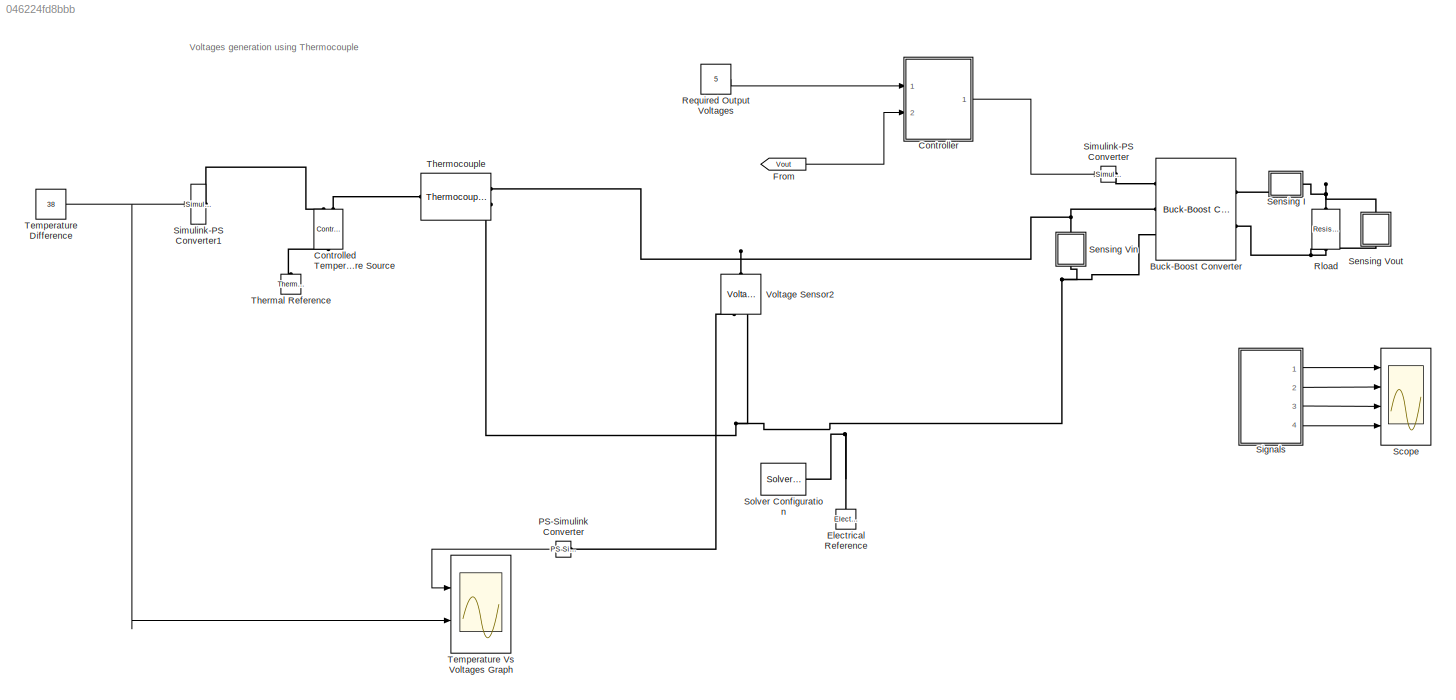
MODEL slx_046224fd8bbb
KIND model
CONFIG AbsTol = auto
CONFIG EnableMultiTasking = on
CONFIG FixedStep = Ts
CONFIG MaxStep = 1e-4
CONFIG MinStep = auto
CONFIG PreLoadFcn = ee_inverting_buck_boost_converter_control_data;
CONFIG RelTol = 1e-3
CONFIG SampleTimeConstraint = Unconstrained
CONFIG Solver = ode23t
CONFIG SolverName = ode23t
CONFIG StartTime = 0.0
CONFIG StopFcn = ee_addSimlogTimeStamp(bdroot)
CONFIG StopTime = 0.5
BLOCK [Reference] Buck-Boost Converter  REF=ee_lib/Semiconductors &
Converters/Converters/Buck-Boost Converter
  Ports = [0, 0, 0, 0, 0, 3, 2]
  SourceBlock = ee_lib/Semiconductors &\nConverters/Converters/Buck-Boost Converter
  SourceProductBaseCode = PS
  SourceProductName = Simscape Electrical
  SourceType = Buck-Boost Converter
BLOCK [Reference] Controlled Temperature Source  REF=fl_lib/Thermal/Thermal Sources/Controlled
Temperature Source
  Ports = [0, 0, 0, 0, 0, 1, 2]
  SourceBlock = fl_lib/Thermal/Thermal Sources/Controlled\nTemperature Source
  SourceProductBaseCode = SS
  SourceProductName = Simscape
  SourceType = Controlled\nTemperature Source
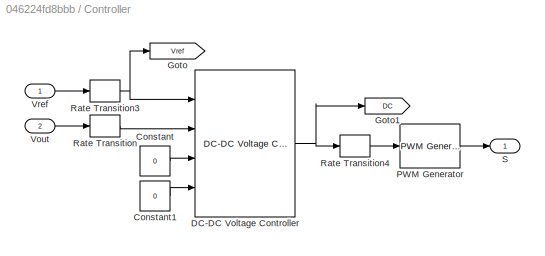
BLOCK [SubSystem] Controller
  Ports = [2, 1]
  RequestExecContextInheritance = off
BLOCK [Constant] Controller/Constant
  Value = 0
BLOCK [Constant] Controller/Constant1
  Value = 0
BLOCK [Reference] Controller/DC-DC Voltage Controller  REF=eeDcDcVoltageController/DC-DC Voltage Controller
  Ports = [4, 1]
  SourceBlock = eeDcDcVoltageController/DC-DC Voltage Controller
  SourceProductBaseCode = PS
  SourceProductName = Simscape Electrical
  SourceType = DC-DC Voltage Controller
BLOCK [Goto] Controller/Goto
  GotoTag = Vref
  TagVisibility = global
BLOCK [Goto] Controller/Goto1
  GotoTag = DC
  TagVisibility = global
BLOCK [Reference] Controller/PWM Generator  REF=eePwmGenerator/PWM Generator
  Ports = [1, 1]
  SourceBlock = eePwmGenerator/PWM Generator
  SourceProductBaseCode = PS
  SourceProductName = Simscape Electrical
  SourceType = PWM Generator
BLOCK [RateTransition] Controller/Rate Transition
  OutPortSampleTime = Tsc
BLOCK [RateTransition] Controller/Rate Transition3
  OutPortSampleTime = Tsc
BLOCK [RateTransition] Controller/Rate Transition4
  OutPortSampleTime = Ts
BLOCK [Outport] Controller/S
  IconDisplay = Port number
BLOCK [Inport] Controller/Vout
  IconDisplay = Port number
  Port = 2
BLOCK [Inport] Controller/Vref
  IconDisplay = Port number
BLOCK [Reference] Electrical Reference  REF=fl_lib/Electrical/Electrical Elements/Electrical Reference
  Ports = [0, 0, 0, 0, 0, 1]
  SourceBlock = fl_lib/Electrical/Electrical Elements/Electrical Reference
  SourceProductBaseCode = SS
  SourceProductName = Simscape
  SourceType = Electrical Reference
BLOCK [From] From
  GotoTag = Vout
  TagVisibility = global
BLOCK [Reference] PS-Simulink Converter  REF=nesl_utility/PS-Simulink
Converter
  Ports = [0, 1, 0, 0, 0, 1]
  SourceBlock = nesl_utility/PS-Simulink\nConverter
  SourceProductBaseCode = SS
  SourceProductName = Simscape
  SourceType = PS-Simulink\nConverter
BLOCK [Constant] Required Output Voltages
  Value = 5
BLOCK [Reference] Rload  REF=fl_lib/Electrical/Electrical Elements/Resistor
  Ports = [0, 0, 0, 0, 0, 1, 1]
  SourceBlock = fl_lib/Electrical/Electrical Elements/Resistor
  SourceProductBaseCode = SS
  SourceProductName = Simscape
  SourceType = Resistor
BLOCK [Scope] Scope
  Floating = off
  NumInputPorts = 4
  Ports = [4]
  ScopeSpecificationString = Simulink.scopes.TimeScopeBlockCfg('CurrentConfiguration', extmgr.ConfigurationSet(extmgr.Configuration('Core','General UI',true,'FigureColor',[1 1 1]),extmgr.Configuration('Core','Source UI',true),extmgr.Configuration('Sources','WiredSimulink',true),extmgr.Configuration('Visuals','Time Domain',true,'SerializedDisplays',{struct('MinYLimReal','-0.62615','MaxYLimReal','5.63535','YLabelReal','Voltage ...<+4261ch>
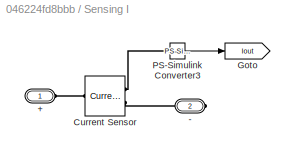
BLOCK [SubSystem] Sensing I
  Ports = [0, 0, 0, 0, 0, 1, 1]
  RequestExecContextInheritance = off
BLOCK [PMIOPort] Sensing I/+
  Side = Left
BLOCK [PMIOPort] Sensing I/-
  Port = 2
  Side = Right
BLOCK [Reference] Sensing I/Current Sensor  REF=fl_lib/Electrical/Electrical Sensors/Current Sensor
  Ports = [0, 0, 0, 0, 0, 1, 2]
  SourceBlock = fl_lib/Electrical/Electrical Sensors/Current Sensor
  SourceProductBaseCode = SS
  SourceProductName = Simscape
  SourceType = Current Sensor
BLOCK [Goto] Sensing I/Goto
  GotoTag = Iout
  TagVisibility = global
BLOCK [Reference] Sensing I/PS-Simulink Converter3  REF=nesl_utility/PS-Simulink
Converter
  Ports = [0, 1, 0, 0, 0, 1]
  SourceBlock = nesl_utility/PS-Simulink\nConverter
  SourceProductBaseCode = SS
  SourceProductName = Simscape
  SourceType = PS-Simulink\nConverter
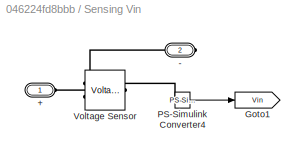
BLOCK [SubSystem] Sensing Vin
  Ports = [0, 0, 0, 0, 0, 1, 1]
  RequestExecContextInheritance = off
BLOCK [PMIOPort] Sensing Vin/+
  Side = Left
BLOCK [PMIOPort] Sensing Vin/-
  Port = 2
  Side = Right
BLOCK [Goto] Sensing Vin/Goto1
  GotoTag = Vin
  TagVisibility = global
BLOCK [Reference] Sensing Vin/PS-Simulink Converter4  REF=nesl_utility/PS-Simulink
Converter
  Ports = [0, 1, 0, 0, 0, 1]
  SourceBlock = nesl_utility/PS-Simulink\nConverter
  SourceProductBaseCode = SS
  SourceProductName = Simscape
  SourceType = PS-Simulink\nConverter
BLOCK [Reference] Sensing Vin/Voltage Sensor  REF=fl_lib/Electrical/Electrical Sensors/Voltage Sensor
  Ports = [0, 0, 0, 0, 0, 1, 2]
  SourceBlock = fl_lib/Electrical/Electrical Sensors/Voltage Sensor
  SourceProductBaseCode = SS
  SourceProductName = Simscape
  SourceType = Voltage Sensor
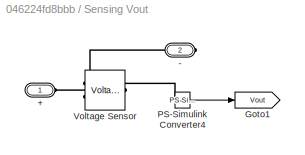
BLOCK [SubSystem] Sensing Vout
  Ports = [0, 0, 0, 0, 0, 1, 1]
  RequestExecContextInheritance = off
BLOCK [PMIOPort] Sensing Vout/+
  Side = Left
BLOCK [PMIOPort] Sensing Vout/-
  Port = 2
  Side = Right
BLOCK [Goto] Sensing Vout/Goto1
  GotoTag = Vout
  TagVisibility = global
BLOCK [Reference] Sensing Vout/PS-Simulink Converter4  REF=nesl_utility/PS-Simulink
Converter
  Ports = [0, 1, 0, 0, 0, 1]
  SourceBlock = nesl_utility/PS-Simulink\nConverter
  SourceProductBaseCode = SS
  SourceProductName = Simscape
  SourceType = PS-Simulink\nConverter
BLOCK [Reference] Sensing Vout/Voltage Sensor  REF=fl_lib/Electrical/Electrical Sensors/Voltage Sensor
  Ports = [0, 0, 0, 0, 0, 1, 2]
  SourceBlock = fl_lib/Electrical/Electrical Sensors/Voltage Sensor
  SourceProductBaseCode = SS
  SourceProductName = Simscape
  SourceType = Voltage Sensor
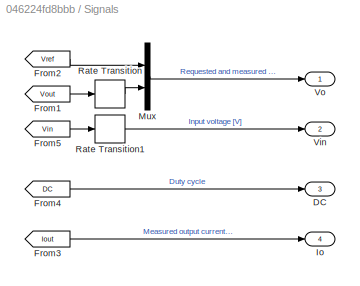
BLOCK [SubSystem] Signals
  Ports = [0, 4]
  RequestExecContextInheritance = off
BLOCK [Outport] Signals/DC
  IconDisplay = Port number
  Port = 3
BLOCK [From] Signals/From1
  GotoTag = Vout
  TagVisibility = global
BLOCK [From] Signals/From2
  GotoTag = Vref
  TagVisibility = global
BLOCK [From] Signals/From3
  GotoTag = Iout
  TagVisibility = global
BLOCK [From] Signals/From4
  GotoTag = DC
  TagVisibility = global
BLOCK [From] Signals/From5
  GotoTag = Vin
  TagVisibility = global
BLOCK [Outport] Signals/Io
  IconDisplay = Port number
  Port = 4
BLOCK [Mux] Signals/Mux
  DisplayOption = bar
  Inputs = 2
  Ports = [2, 1]
BLOCK [RateTransition] Signals/Rate Transition
  OutPortSampleTime = Tsc
BLOCK [RateTransition] Signals/Rate Transition1
  OutPortSampleTime = Tsc
BLOCK [Outport] Signals/Vin
  IconDisplay = Port number
  Port = 2
BLOCK [Outport] Signals/Vo
  IconDisplay = Port number
BLOCK [Reference] Simulink-PS Converter  REF=nesl_utility/Simulink-PS
Converter
  Ports = [1, 0, 0, 0, 0, 0, 1]
  SourceBlock = nesl_utility/Simulink-PS\nConverter
  SourceProductBaseCode = SS
  SourceProductName = Simscape
  SourceType = Simulink-PS\nConverter
BLOCK [Reference] Simulink-PS Converter1  REF=nesl_utility/Simulink-PS
Converter
  Ports = [1, 0, 0, 0, 0, 0, 1]
  SourceBlock = nesl_utility/Simulink-PS\nConverter
  SourceProductBaseCode = SS
  SourceProductName = Simscape
  SourceType = Simulink-PS\nConverter
BLOCK [Reference] Solver Configuration  REF=nesl_utility/Solver
Configuration
  Ports = [0, 0, 0, 0, 0, 0, 1]
  SourceBlock = nesl_utility/Solver\nConfiguration
  SourceProductBaseCode = SS
  SourceProductName = Simscape
  SourceType = Solver\nConfiguration
BLOCK [Constant] Temperature Difference 
  Value = 38
BLOCK [Scope] Temperature Vs Voltages Graph
  Floating = off
  NumInputPorts = 2
  Ports = [2]
  ScopeSpecificationString = Simulink.scopes.TimeScopeBlockCfg('CurrentConfiguration', extmgr.ConfigurationSet(extmgr.Configuration('Core','General UI',true),extmgr.Configuration('Core','Source UI',true),extmgr.Configuration('Sources','WiredSimulink',true,'DataLoggingVariableName','ScopeData1'),extmgr.Configuration('Visuals','Time Domain',true,'SerializedDisplays',{struct('MinYLimReal','3.53157','MaxYLimReal','5.53157','YLabe...<+2105ch>
BLOCK [Reference] Thermal Reference  REF=fl_lib/Thermal/Thermal Elements/Thermal Reference
  Ports = [0, 0, 0, 0, 0, 1]
  SourceBlock = fl_lib/Thermal/Thermal Elements/Thermal Reference
  SourceProductBaseCode = SS
  SourceProductName = Simscape
  SourceType = Thermal Reference
BLOCK [Reference] Thermocouple  REF=ee_lib/Sensors &
Transducers/Thermocouple
  Ports = [0, 0, 0, 0, 0, 2, 1]
  SourceBlock = ee_lib/Sensors &\nTransducers/Thermocouple
  SourceProductBaseCode = PS
  SourceProductName = Simscape Electrical
  SourceType = Thermocouple
BLOCK [Reference] Voltage Sensor2  REF=fl_lib/Electrical/Electrical Sensors/Voltage Sensor
  Ports = [0, 0, 0, 0, 0, 1, 2]
  SourceBlock = fl_lib/Electrical/Electrical Sensors/Voltage Sensor
  SourceProductBaseCode = SS
  SourceProductName = Simscape
  SourceType = Voltage Sensor
ANNOTATION (root): Voltages generation using Thermocouple
LINE Controller/Constant1:1 -> Controller/DC-DC Voltage Controller:4
LINE Controller/Constant:1 -> Controller/DC-DC Voltage Controller:3
NET Controller/DC-DC Voltage Controller:1 -> Controller/Goto1:1, Controller/Rate Transition4:1
LINE Controller/PWM Generator:1 -> Controller/S:1
NET Controller/Rate Transition3:1 -> Controller/DC-DC Voltage Controller:1, Controller/Goto:1
LINE Controller/Rate Transition4:1 -> Controller/PWM Generator:1
LINE Controller/Rate Transition:1 -> Controller/DC-DC Voltage Controller:2
LINE Controller/Vout:1 -> Controller/Rate Transition:1
LINE Controller/Vref:1 -> Controller/Rate Transition3:1
LINE Controller:1 -> Simulink-PS Converter:1
LINE From:1 -> Controller:2
LINE PS-Simulink Converter:1 -> Temperature Vs Voltages Graph:1
LINE Required Output Voltages:1 -> Controller:1
LINE Sensing I/PS-Simulink Converter3:1 -> Sensing I/Goto:1
LINE Sensing Vin/PS-Simulink Converter4:1 -> Sensing Vin/Goto1:1
LINE Sensing Vout/PS-Simulink Converter4:1 -> Sensing Vout/Goto1:1
LINE Signals/From1:1 -> Signals/Rate Transition:1
LINE Signals/From2:1 -> Signals/Mux:1
LINE Signals/From3:1 -> Signals/Io:1
LINE Signals/From4:1 -> Signals/DC:1
LINE Signals/From5:1 -> Signals/Rate Transition1:1
LINE Signals/Mux:1 -> Signals/Vo:1
LINE Signals/Rate Transition1:1 -> Signals/Vin:1
LINE Signals/Rate Transition:1 -> Signals/Mux:2
LINE Signals:1 -> Scope:1
LINE Signals:2 -> Scope:2
LINE Signals:3 -> Scope:3
LINE Signals:4 -> Scope:4
NET Temperature Difference :1 -> Simulink-PS Converter1:1, Temperature Vs Voltages Graph:2
PLINE Buck-Boost Converter:LConn1 -- Simulink-PS Converter:RConn1
PNET net1: Buck-Boost Converter:LConn2 -- Sensing Vin:LConn1 -- Thermocouple:LConn1 -- Voltage Sensor2:LConn1
PNET net2: Buck-Boost Converter:LConn3 -- Electrical Reference:LConn1 -- Sensing Vin:RConn1 -- Solver Configuration:RConn1 -- Thermocouple:LConn2 -- Voltage Sensor2:RConn2
PLINE Buck-Boost Converter:RConn1 -- Sensing I:RConn1
PNET net3: Buck-Boost Converter:RConn2 -- Rload:RConn1 -- Sensing Vout:LConn1
PLINE Controlled Temperature Source:LConn1 -- Thermal Reference:LConn1
PLINE Controlled Temperature Source:RConn1 -- Simulink-PS Converter1:RConn1
PLINE Controlled Temperature Source:RConn2 -- Thermocouple:RConn1
PLINE PS-Simulink Converter:LConn1 -- Voltage Sensor2:RConn1
PNET net4: Rload:LConn1 -- Sensing I:LConn1 -- Sensing Vout:RConn1
PLINE Sensing I/+:RConn1 -- Sensing I/Current Sensor:LConn1
PLINE Sensing I/-:RConn1 -- Sensing I/Current Sensor:RConn2
PLINE Sensing I/Current Sensor:RConn1 -- Sensing I/PS-Simulink Converter3:LConn1
PLINE Sensing Vin/+:RConn1 -- Sensing Vin/Voltage Sensor:LConn1
PLINE Sensing Vin/-:RConn1 -- Sensing Vin/Voltage Sensor:RConn2
PLINE Sensing Vin/PS-Simulink Converter4:LConn1 -- Sensing Vin/Voltage Sensor:RConn1
PLINE Sensing Vout/+:RConn1 -- Sensing Vout/Voltage Sensor:LConn1
PLINE Sensing Vout/-:RConn1 -- Sensing Vout/Voltage Sensor:RConn2
PLINE Sensing Vout/PS-Simulink Converter4:LConn1 -- Sensing Vout/Voltage Sensor:RConn1
note: NET lines group one-source signal fan-out (src -> all destinations, sorted); 1:1 wires keep LINE; PNET lines group multi-terminal physical nets as a canonical sorted terminal list (undirected conserving connections); 2-terminal nets keep the pairwise PLINE form
